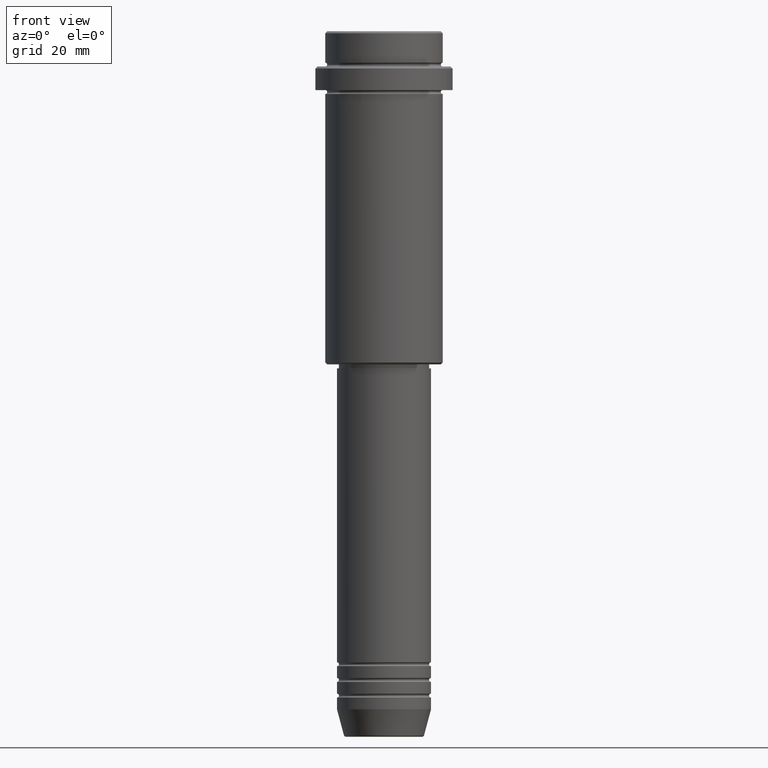
[diagram: clean part render]
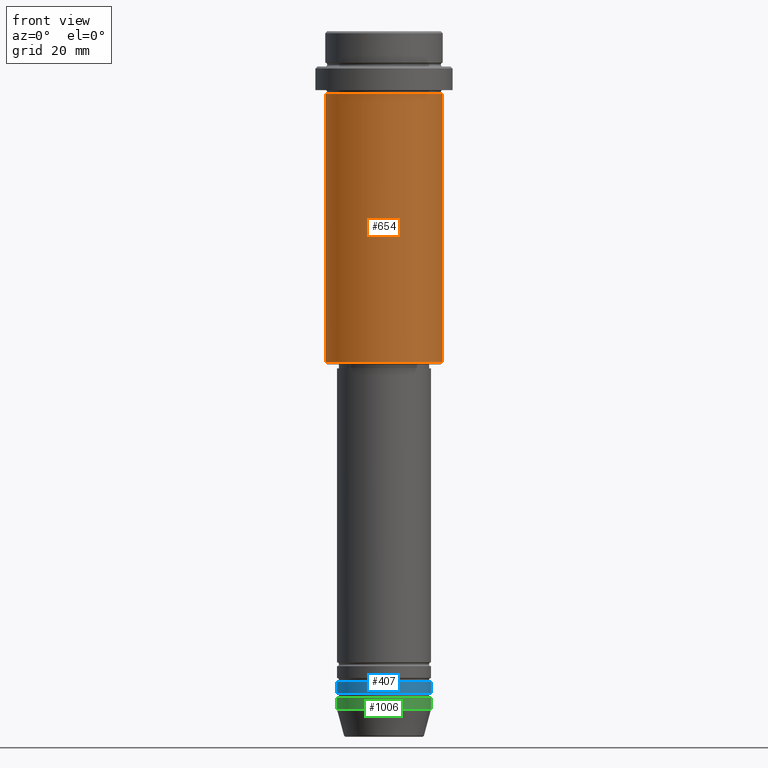
[diagram: same view with three faces highlighted in distinct colors, each labeled with its STEP entity id]
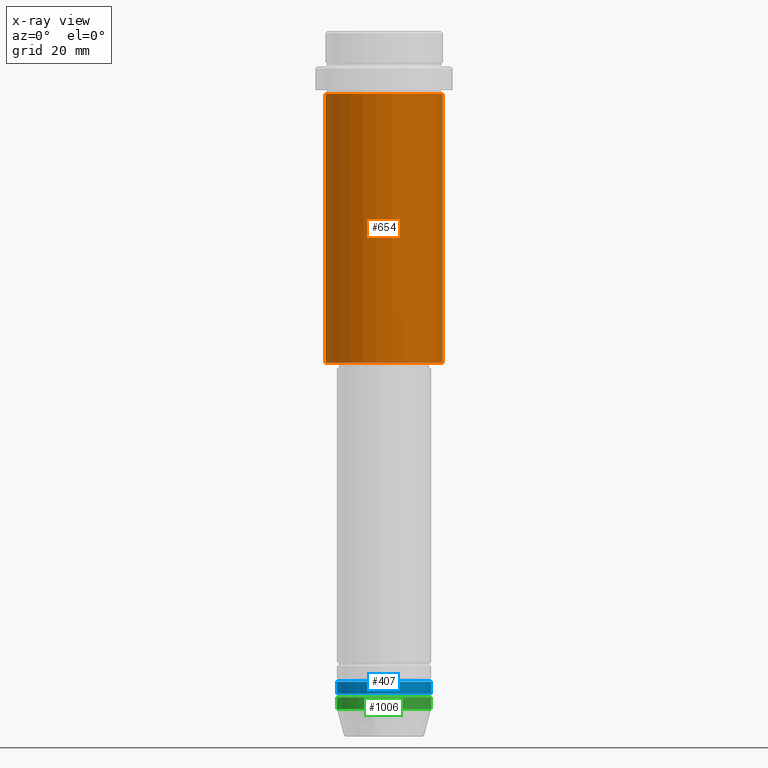
[diagram: x-ray of the same camera — body ghosted, the three highlighted faces saturated]
A machine part, front view with three faces highlighted in distinct colors.
The next image is the same camera in x-ray (body ghosted, the three faces saturated) — at least one of them is partly hidden behind the body in this view.
Their STEP definitions:

[orange] entity #654 — the highlighted cylindrical surface (partial cylindrical patch) has radius 15 mm, axis along (-0, -0, 1).
#31 = VECTOR ( 'NONE', #355, 1000.000000000000000 ) ;
#118 = AXIS2_PLACEMENT_3D ( 'NONE', #680, #350, #771 ) ;
#158 = VERTEX_POINT ( 'NONE', #596 ) ;
#179 = CARTESIAN_POINT ( 'NONE',  ( -15.00000000000000355, 1.836970198721029983E-15, -16.00000000000000000 ) ) ;
#236 = CARTESIAN_POINT ( 'NONE',  ( 15.00000000000000000, 0.000000000000000000, 0.000000000000000000 ) ) ;
#287 = FACE_OUTER_BOUND ( 'NONE', #1290, .T. ) ;
#350 = DIRECTION ( 'NONE',  ( -0.000000000000000000, -0.000000000000000000, 1.000000000000000000 ) ) ;
#355 = DIRECTION ( 'NONE',  ( -0.000000000000000000, -0.000000000000000000, 1.000000000000000000 ) ) ;
#471 = LINE ( 'NONE', #547, #31 ) ;
#474 = DIRECTION ( 'NONE',  ( 1.000000000000000000, 0.000000000000000000, 0.000000000000000000 ) ) ;
#495 = CARTESIAN_POINT ( 'NONE',  ( 15.00000000000000000, 0.000000000000000000, -84.50000000000000000 ) ) ;
#505 = ORIENTED_EDGE ( 'NONE', *, *, #1353, .F. ) ;
#538 = ORIENTED_EDGE ( 'NONE', *, *, #763, .F. ) ;
#547 = CARTESIAN_POINT ( 'NONE',  ( -15.00000000000000000, 1.836970198721029589E-15, 0.000000000000000000 ) ) ;
#551 = CIRCLE ( 'NONE', #1184, 15.00000000000000000 ) ;
#596 = CARTESIAN_POINT ( 'NONE',  ( -15.00000000000000000, 1.836970198721029589E-15, -84.50000000000000000 ) ) ;
#624 = VERTEX_POINT ( 'NONE', #1382 ) ;
#654 = ADVANCED_FACE ( 'NONE', ( #287 ), #1042, .T. ) ;
#656 = DIRECTION ( 'NONE',  ( -0.000000000000000000, -0.000000000000000000, 1.000000000000000000 ) ) ;
#680 = CARTESIAN_POINT ( 'NONE',  ( 0.000000000000000000, 0.000000000000000000, 0.000000000000000000 ) ) ;
#684 = CARTESIAN_POINT ( 'NONE',  ( 0.000000000000000000, 0.000000000000000000, -84.50000000000000000 ) ) ;
#763 = EDGE_CURVE ( 'NONE', #158, #1388, #471, .T. ) ;
#771 = DIRECTION ( 'NONE',  ( 1.000000000000000000, 0.000000000000000000, 0.000000000000000000 ) ) ;
#878 = ORIENTED_EDGE ( 'NONE', *, *, #1211, .T. ) ;
#926 = VERTEX_POINT ( 'NONE', #495 ) ;
#1014 = CARTESIAN_POINT ( 'NONE',  ( 0.000000000000000000, 0.000000000000000000, -16.00000000000000000 ) ) ;
#1042 = CYLINDRICAL_SURFACE ( 'NONE', #118, 15.00000000000000000 ) ;
#1081 = DIRECTION ( 'NONE',  ( -1.000000000000000000, 0.000000000000000000, 0.000000000000000000 ) ) ;
#1108 = DIRECTION ( 'NONE',  ( -0.000000000000000000, -0.000000000000000000, 1.000000000000000000 ) ) ;
#1112 = AXIS2_PLACEMENT_3D ( 'NONE', #1014, #1117, #474 ) ;
#1117 = DIRECTION ( 'NONE',  ( -0.000000000000000000, -0.000000000000000000, 1.000000000000000000 ) ) ;
#1128 = ORIENTED_EDGE ( 'NONE', *, *, #1194, .T. ) ;
#1184 = AXIS2_PLACEMENT_3D ( 'NONE', #684, #1108, #1081 ) ;
#1194 = EDGE_CURVE ( 'NONE', #926, #624, #1202, .T. ) ;
#1202 = LINE ( 'NONE', #236, #1225 ) ;
#1211 = EDGE_CURVE ( 'NONE', #158, #926, #551, .T. ) ;
#1225 = VECTOR ( 'NONE', #656, 1000.000000000000000 ) ;
#1290 = EDGE_LOOP ( 'NONE', ( #538, #878, #1128, #505 ) ) ;
#1353 = EDGE_CURVE ( 'NONE', #1388, #624, #1381, .T. ) ;
#1381 = CIRCLE ( 'NONE', #1112, 15.00000000000000178 ) ;
#1382 = CARTESIAN_POINT ( 'NONE',  ( 15.00000000000000178, 0.000000000000000000, -16.00000000000000000 ) ) ;
#1388 = VERTEX_POINT ( 'NONE', #179 ) ;

[blue] entity #407 — the highlighted cylindrical surface (partial cylindrical patch) has radius 12 mm, axis along (-0, -0, 1).
#17 = ORIENTED_EDGE ( 'NONE', *, *, #692, .F. ) ;
#21 = VERTEX_POINT ( 'NONE', #1172 ) ;
#127 = CYLINDRICAL_SURFACE ( 'NONE', #669, 12.00000000000000000 ) ;
#149 = CARTESIAN_POINT ( 'NONE',  ( 0.000000000000000000, 0.000000000000000000, -168.9999999999998863 ) ) ;
#195 = VECTOR ( 'NONE', #746, 1000.000000000000000 ) ;
#249 = EDGE_CURVE ( 'NONE', #609, #21, #442, .T. ) ;
#259 = DIRECTION ( 'NONE',  ( 1.000000000000000000, 0.000000000000000000, 0.000000000000000000 ) ) ;
#365 = CARTESIAN_POINT ( 'NONE',  ( 0.000000000000000000, 0.000000000000000000, 0.000000000000000000 ) ) ;
#407 = ADVANCED_FACE ( 'NONE', ( #589 ), #127, .T. ) ;
#442 = CIRCLE ( 'NONE', #1226, 12.00000000000000000 ) ;
#457 = VERTEX_POINT ( 'NONE', #682 ) ;
#520 = CARTESIAN_POINT ( 'NONE',  ( 12.00000000000000000, 0.000000000000000000, 0.000000000000000000 ) ) ;
#569 = DIRECTION ( 'NONE',  ( -0.000000000000000000, -0.000000000000000000, 1.000000000000000000 ) ) ;
#589 = FACE_OUTER_BOUND ( 'NONE', #1060, .T. ) ;
#590 = ORIENTED_EDGE ( 'NONE', *, *, #249, .T. ) ;
#609 = VERTEX_POINT ( 'NONE', #621 ) ;
#621 = CARTESIAN_POINT ( 'NONE',  ( -12.00000000000000000, 1.469576158976823947E-15, -168.9999999999998863 ) ) ;
#662 = DIRECTION ( 'NONE',  ( -0.000000000000000000, -0.000000000000000000, 1.000000000000000000 ) ) ;
#669 = AXIS2_PLACEMENT_3D ( 'NONE', #365, #569, #1239 ) ;
#682 = CARTESIAN_POINT ( 'NONE',  ( -12.00000000000000000, 1.469576158976823947E-15, -165.9999999999998579 ) ) ;
#692 = EDGE_CURVE ( 'NONE', #457, #740, #1167, .T. ) ;
#740 = VERTEX_POINT ( 'NONE', #1217 ) ;
#746 = DIRECTION ( 'NONE',  ( -0.000000000000000000, -0.000000000000000000, 1.000000000000000000 ) ) ;
#788 = CARTESIAN_POINT ( 'NONE',  ( 0.000000000000000000, 0.000000000000000000, -165.9999999999998579 ) ) ;
#916 = AXIS2_PLACEMENT_3D ( 'NONE', #788, #1212, #1197 ) ;
#931 = ORIENTED_EDGE ( 'NONE', *, *, #1121, .F. ) ;
#949 = ORIENTED_EDGE ( 'NONE', *, *, #1043, .T. ) ;
#1043 = EDGE_CURVE ( 'NONE', #21, #740, #1282, .T. ) ;
#1060 = EDGE_LOOP ( 'NONE', ( #931, #590, #949, #17 ) ) ;
#1109 = DIRECTION ( 'NONE',  ( -0.000000000000000000, -0.000000000000000000, 1.000000000000000000 ) ) ;
#1111 = VECTOR ( 'NONE', #662, 1000.000000000000000 ) ;
#1121 = EDGE_CURVE ( 'NONE', #609, #457, #1336, .T. ) ;
#1167 = CIRCLE ( 'NONE', #916, 12.00000000000000000 ) ;
#1172 = CARTESIAN_POINT ( 'NONE',  ( 12.00000000000000000, 0.000000000000000000, -168.9999999999998863 ) ) ;
#1197 = DIRECTION ( 'NONE',  ( 1.000000000000000000, 0.000000000000000000, 0.000000000000000000 ) ) ;
#1212 = DIRECTION ( 'NONE',  ( -0.000000000000000000, -0.000000000000000000, 1.000000000000000000 ) ) ;
#1217 = CARTESIAN_POINT ( 'NONE',  ( 12.00000000000000000, 0.000000000000000000, -165.9999999999998579 ) ) ;
#1226 = AXIS2_PLACEMENT_3D ( 'NONE', #149, #1109, #259 ) ;
#1239 = DIRECTION ( 'NONE',  ( 1.000000000000000000, 0.000000000000000000, 0.000000000000000000 ) ) ;
#1282 = LINE ( 'NONE', #520, #195 ) ;
#1323 = CARTESIAN_POINT ( 'NONE',  ( -12.00000000000000000, 1.469576158976823947E-15, 0.000000000000000000 ) ) ;
#1336 = LINE ( 'NONE', #1323, #1111 ) ;

[green] entity #1006 — the highlighted cylindrical surface (partial cylindrical patch) has radius 12 mm, axis along (-0, -0, 1).
#8 = DIRECTION ( 'NONE',  ( 1.000000000000000000, 0.000000000000000000, 0.000000000000000000 ) ) ;
#93 = EDGE_CURVE ( 'NONE', #1157, #360, #481, .T. ) ;
#108 = LINE ( 'NONE', #1169, #853 ) ;
#119 = ORIENTED_EDGE ( 'NONE', *, *, #93, .F. ) ;
#126 = DIRECTION ( 'NONE',  ( -0.000000000000000000, -0.000000000000000000, 1.000000000000000000 ) ) ;
#193 = AXIS2_PLACEMENT_3D ( 'NONE', #972, #1303, #8 ) ;
#198 = DIRECTION ( 'NONE',  ( -0.000000000000000000, -0.000000000000000000, 1.000000000000000000 ) ) ;
#199 = ORIENTED_EDGE ( 'NONE', *, *, #1059, .T. ) ;
#202 = EDGE_CURVE ( 'NONE', #366, #1157, #108, .T. ) ;
#212 = CIRCLE ( 'NONE', #193, 12.00000000000000000 ) ;
#226 = EDGE_CURVE ( 'NONE', #366, #1248, #212, .T. ) ;
#313 = DIRECTION ( 'NONE',  ( -0.000000000000000000, -0.000000000000000000, 1.000000000000000000 ) ) ;
#318 = CARTESIAN_POINT ( 'NONE',  ( 0.000000000000000000, 0.000000000000000000, 0.000000000000000000 ) ) ;
#324 = VECTOR ( 'NONE', #313, 1000.000000000000000 ) ;
#360 = VERTEX_POINT ( 'NONE', #795 ) ;
#366 = VERTEX_POINT ( 'NONE', #1346 ) ;
#368 = AXIS2_PLACEMENT_3D ( 'NONE', #659, #126, #876 ) ;
#413 = CYLINDRICAL_SURFACE ( 'NONE', #870, 12.00000000000000000 ) ;
#481 = CIRCLE ( 'NONE', #368, 12.00000000000000000 ) ;
#522 = EDGE_LOOP ( 'NONE', ( #1264, #613, #199, #119 ) ) ;
#539 = DIRECTION ( 'NONE',  ( -0.000000000000000000, -0.000000000000000000, 1.000000000000000000 ) ) ;
#613 = ORIENTED_EDGE ( 'NONE', *, *, #226, .T. ) ;
#634 = LINE ( 'NONE', #851, #324 ) ;
#659 = CARTESIAN_POINT ( 'NONE',  ( 0.000000000000000000, 0.000000000000000000, -169.9999999999999716 ) ) ;
#672 = CARTESIAN_POINT ( 'NONE',  ( -12.00000000000000000, 1.469576158976823947E-15, -169.9999999999999716 ) ) ;
#704 = CARTESIAN_POINT ( 'NONE',  ( 12.00000000000000000, 0.000000000000000000, -173.0000000000000000 ) ) ;
#795 = CARTESIAN_POINT ( 'NONE',  ( 12.00000000000000000, 0.000000000000000000, -169.9999999999999716 ) ) ;
#840 = DIRECTION ( 'NONE',  ( 1.000000000000000000, 0.000000000000000000, 0.000000000000000000 ) ) ;
#851 = CARTESIAN_POINT ( 'NONE',  ( 12.00000000000000000, 0.000000000000000000, 0.000000000000000000 ) ) ;
#853 = VECTOR ( 'NONE', #198, 1000.000000000000000 ) ;
#870 = AXIS2_PLACEMENT_3D ( 'NONE', #318, #539, #840 ) ;
#876 = DIRECTION ( 'NONE',  ( 1.000000000000000000, 0.000000000000000000, 0.000000000000000000 ) ) ;
#972 = CARTESIAN_POINT ( 'NONE',  ( 0.000000000000000000, 0.000000000000000000, -173.0000000000000000 ) ) ;
#1006 = ADVANCED_FACE ( 'NONE', ( #1289 ), #413, .T. ) ;
#1059 = EDGE_CURVE ( 'NONE', #1248, #360, #634, .T. ) ;
#1157 = VERTEX_POINT ( 'NONE', #672 ) ;
#1169 = CARTESIAN_POINT ( 'NONE',  ( -12.00000000000000000, 1.469576158976823947E-15, 0.000000000000000000 ) ) ;
#1248 = VERTEX_POINT ( 'NONE', #704 ) ;
#1264 = ORIENTED_EDGE ( 'NONE', *, *, #202, .F. ) ;
#1289 = FACE_OUTER_BOUND ( 'NONE', #522, .T. ) ;
#1303 = DIRECTION ( 'NONE',  ( -0.000000000000000000, -0.000000000000000000, 1.000000000000000000 ) ) ;
#1346 = CARTESIAN_POINT ( 'NONE',  ( -12.00000000000000000, 1.469576158976823947E-15, -173.0000000000000000 ) ) ;